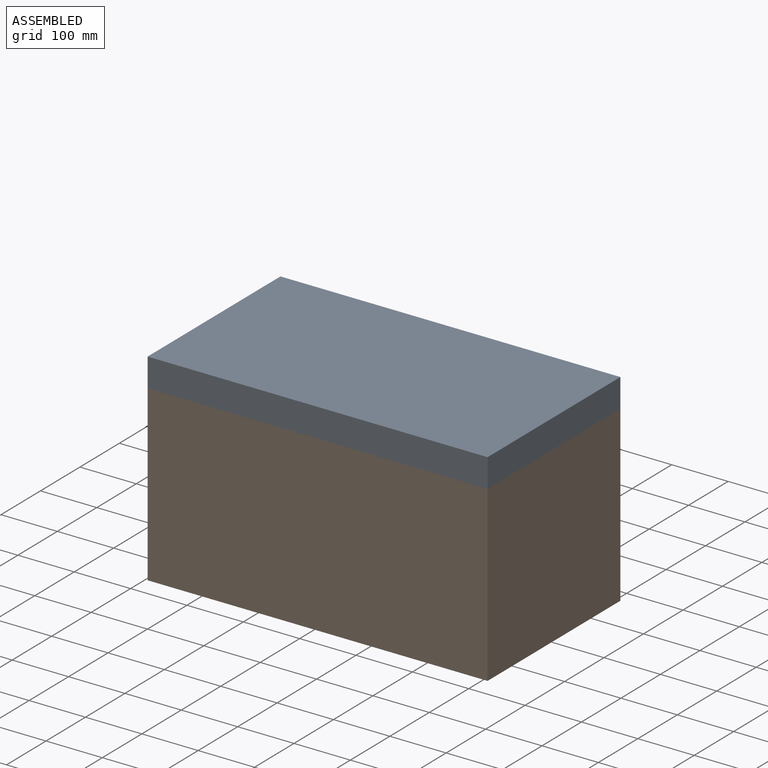
[diagram: assembled view]
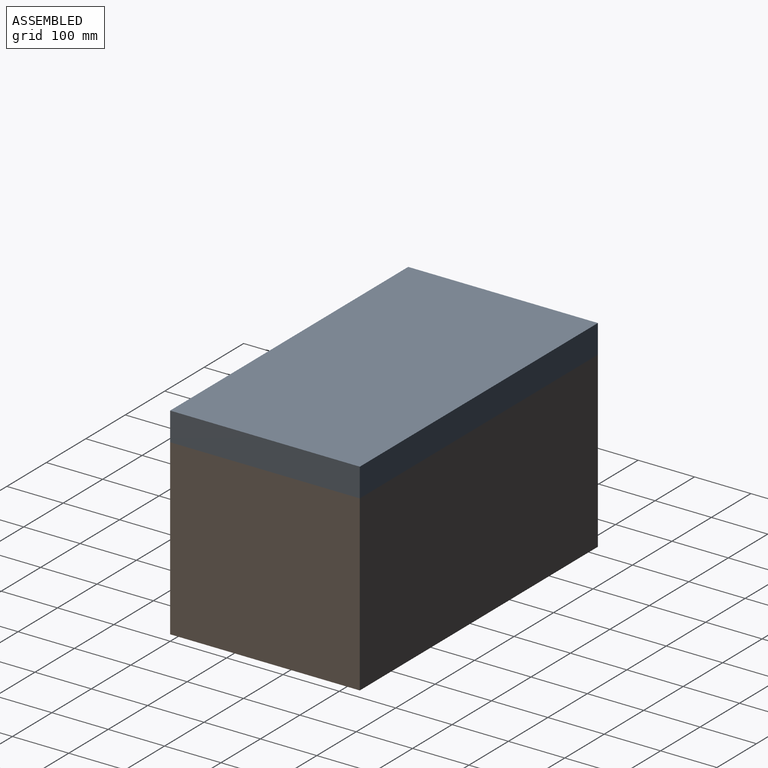
[diagram: assembled view, second angle]
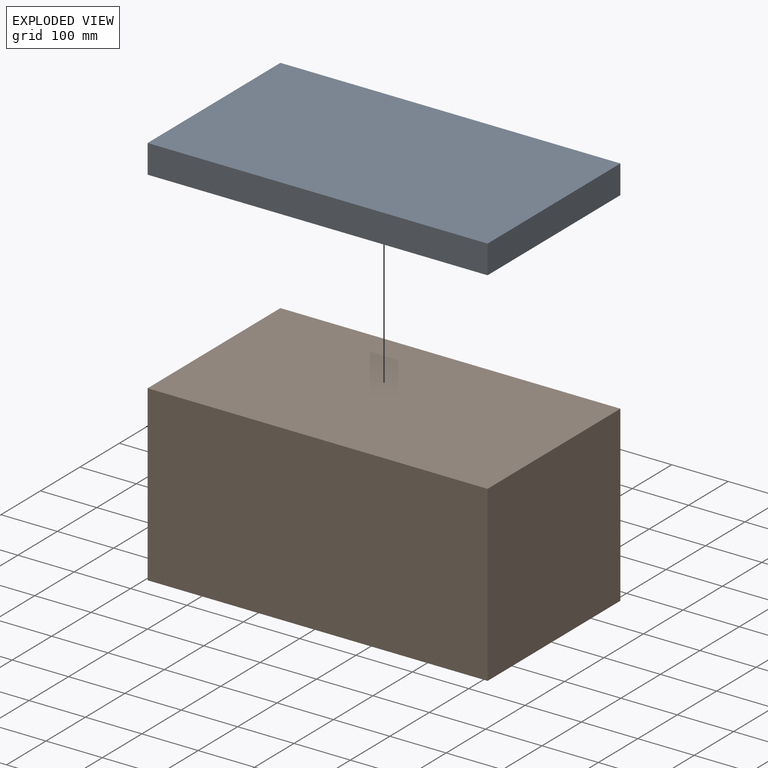
[diagram: exploded view]
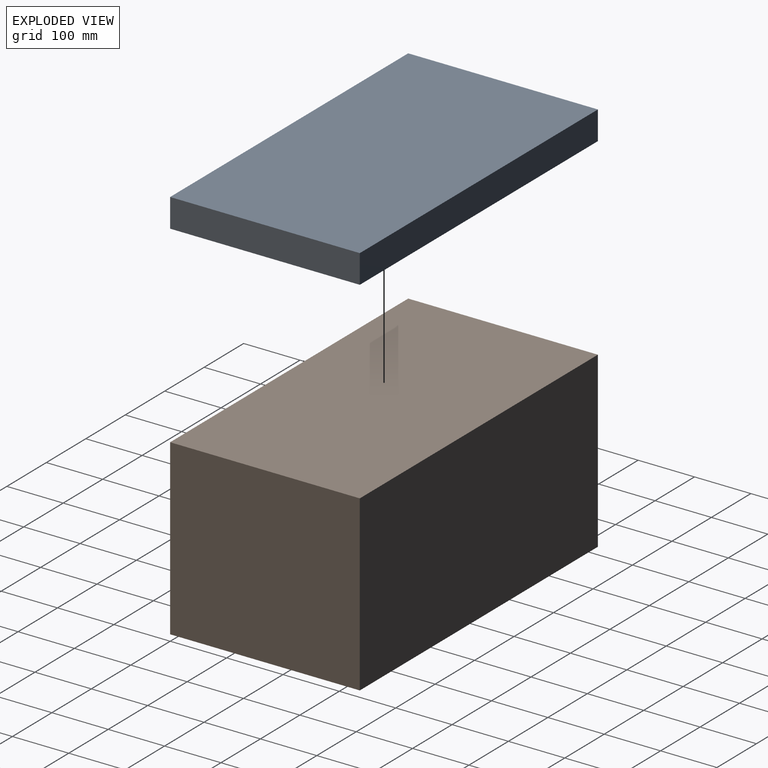
[diagram: exploded view, second angle]
ASSEMBLY  parts=2 mates=3
PART A: 6 faces, bbox 603.3x336.6x50.8 mm
  f0: plane 336.55x50.8mm, normal (-1,0,0), area 17096.7mm2, adj f1,f3,f4,f5
  f1: plane 603.25x50.8mm, normal (0,-1,0), area 30645.1mm2, adj f0,f2,f4,f5
  f2: plane 336.55x50.8mm, normal (1,0,0), area 17096.7mm2, adj f1,f3,f4,f5
  f3: plane 603.25x50.8mm, normal (0,1,0), area 30645.1mm2, adj f0,f2,f4,f5
  f4: plane 603.25x336.55mm, normal (0,0,1), area 203023.8mm2, adj f0,f1,f2,f3
  f5: plane 603.25x336.55mm, normal (0,0,-1), area 203023.8mm2, adj f0,f1,f2,f3
PART B: 6 faces, bbox 603.3x336.6x308 mm
  f0: plane 603.25x336.55mm, normal (0,0,1), area 203023.8mm2, adj f2,f3,f4,f5
  f1: plane 603.25x336.55mm, normal (0,0,-1), area 203023.8mm2, adj f2,f3,f4,f5
  f2: plane 603.25x307.98mm, normal (0,1,0), area 185785.9mm2, adj f0,f1,f3,f5
  f3: plane 336.55x307.98mm, normal (1,0,0), area 103649mm2, adj f0,f1,f2,f4
  f4: plane 603.25x307.98mm, normal (0,-1,0), area 185785.9mm2, adj f0,f1,f3,f5
  f5: plane 336.55x307.98mm, normal (-1,0,0), area 103649mm2, adj f0,f1,f2,f4
PLACE A t=(-133.73,48.54,-246.38)mm
PLACE B t=(-133.73,48.54,-246.38)mm
MATE planar B.f0 <-> A.f5  axis (0,0,1) through (167.89,216.81,61.6)mm
MATE planar A.f1 <-> B.f4  axis (0,-1,0) through (167.89,48.54,87)mm
MATE planar A.f2 <-> B.f3  axis (1,0,0) through (469.52,216.81,87)mm
